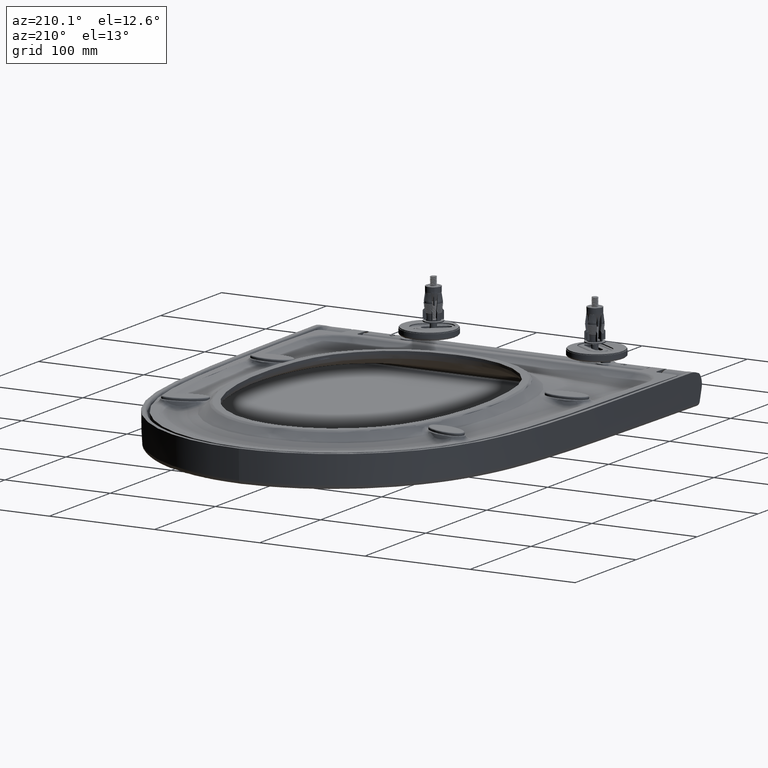
[diagram: clean part render]
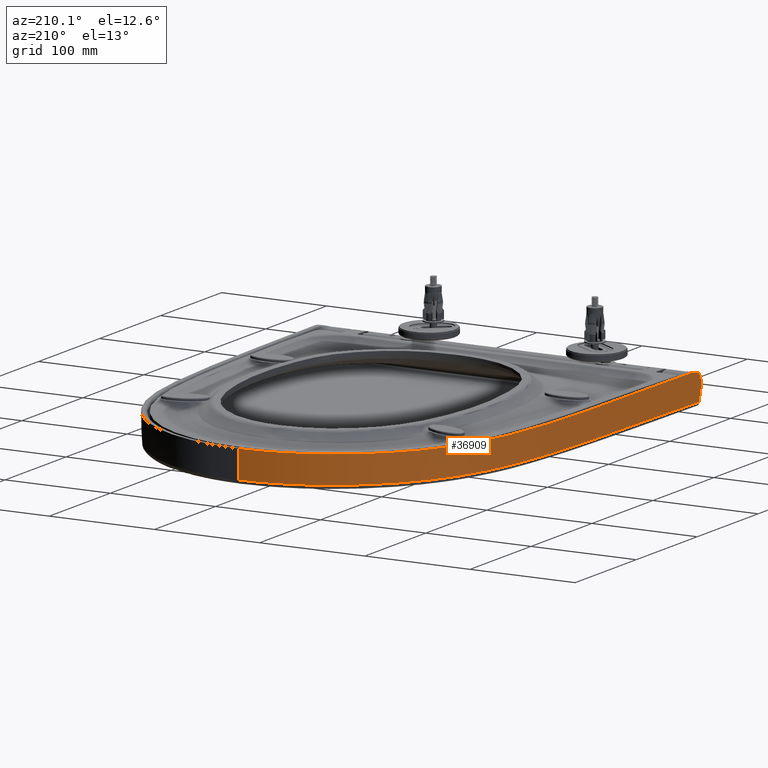
[diagram: same view with one face highlighted and labeled with its STEP entity id]
A machine part, auxiliary view. The second image highlights one B-rep face of the part: STEP entity #36909.
In plain terms, the highlighted face is a freeform B-spline surface patch.
Its self-contained STEP definition (entity closure, byte-faithful):
#33938=DIRECTION('',(1.745527117404E-2,-9.998476451481E-1,-1.439354094392E-10));
#33939=VECTOR('',#33938,2.661036454849E1);
#33940=CARTESIAN_POINT('',(4.627604190006E2,2.460631033034E1,
3.829599969836E-9));
#33941=LINE('',#33940,#33939);
#33942=CARTESIAN_POINT('',(1.355598717456E1,1.483447112919E1,1.787276437954E2));
#33943=CARTESIAN_POINT('',(1.385956772965E1,1.592884330337E1,1.787079702712E2));
#33944=CARTESIAN_POINT('',(1.446875507497E1,1.815293155915E1,1.786677047600E2));
#33945=CARTESIAN_POINT('',(1.535569918370E1,2.160687606978E1,1.786053820131E2));
#33946=CARTESIAN_POINT('',(1.599493402894E1,2.396451394474E1,1.785644403813E2));
#33947=CARTESIAN_POINT('',(1.632109369283E1,2.516144154054E1,1.785429384107E2));
#33949=CARTESIAN_POINT('',(1.632109369283E1,2.516144154054E1,1.785429384107E2));
#33950=CARTESIAN_POINT('',(3.864213313813E1,2.506585513878E1,1.784922737846E2));
#33951=CARTESIAN_POINT('',(8.328064523827E1,2.486774373113E1,1.781855839201E2));
#33952=CARTESIAN_POINT('',(1.502246251232E2,2.459570723331E1,1.773574155041E2));
#33953=CARTESIAN_POINT('',(2.060509088499E2,2.437498458567E1,1.759858462818E2));
#33954=CARTESIAN_POINT('',(2.507109372020E2,2.422181940488E1,1.734049631766E2));
#33955=CARTESIAN_POINT('',(2.841550716498E2,2.412484239113E1,1.702634994917E2));
#33956=CARTESIAN_POINT('',(3.174881770904E2,2.405954226929E1,1.649459725570E2));
#33957=CARTESIAN_POINT('',(3.501172814178E2,2.404989789133E1,1.556895786642E2));
#33958=CARTESIAN_POINT('',(3.810292007364E2,2.410670723827E1,1.412695677403E2));
#33959=CARTESIAN_POINT('',(4.177347201674E2,2.426129125877E1,1.143101611712E2));
#33960=CARTESIAN_POINT('',(4.524897503572E2,2.453182587116E1,6.805302128084E1));
#33961=CARTESIAN_POINT('',(4.627603024986E2,2.460630953780E1,2.270499312342E1));
#33962=CARTESIAN_POINT('',(4.627604190006E2,2.460631033034E1,
3.829599969836E-9));
#33964=CARTESIAN_POINT('',(3.056754644031E1,-1.999999876984E0,
1.789687411308E2));
#33965=CARTESIAN_POINT('',(4.751824236054E1,-1.999999876984E0,
1.788973435934E2));
#33966=CARTESIAN_POINT('',(7.982374964766E1,-2.000000057092E0,
1.786630189628E2));
#33967=CARTESIAN_POINT('',(1.231382903773E2,-1.999999984702E0,
1.781425289772E2));
#33968=CARTESIAN_POINT('',(1.623790255184E2,-2.000000004099E0,
1.775154749295E2));
#33969=CARTESIAN_POINT('',(1.975833120235E2,-1.999999998902E0,
1.765745074952E2));
#33970=CARTESIAN_POINT('',(2.287817076286E2,-2.000000000294E0,
1.752034739058E2));
#33971=CARTESIAN_POINT('',(2.563481842830E2,-1.999999999921E0,
1.733495062176E2));
#33972=CARTESIAN_POINT('',(2.805533375280E2,-2.000000000021E0,
1.709548315538E2));
#33973=CARTESIAN_POINT('',(3.017245035490E2,-1.999999999994E0,
1.679811250958E2));
#33974=CARTESIAN_POINT('',(3.200158636192E2,-2.000000000002E0,
1.643466256910E2));
#33975=CARTESIAN_POINT('',(3.360250831624E2,-2.E0,1.601052141601E2));
#33976=CARTESIAN_POINT('',(3.502005047276E2,-2.E0,1.553460563256E2));
#33977=CARTESIAN_POINT('',(3.628803505777E2,-2.E0,1.501268057971E2));
#33978=CARTESIAN_POINT('',(3.744625545584E2,-2.E0,1.444031203151E2));
#33979=CARTESIAN_POINT('',(3.852499920167E2,-2.E0,1.380681694013E2));
#33980=CARTESIAN_POINT('',(3.954623039032E2,-2.E0,1.310567742935E2));
#33981=CARTESIAN_POINT('',(4.051374434337E2,-2.E0,1.233588571963E2));
#33982=CARTESIAN_POINT('',(4.141890334608E2,-2.E0,1.150498269234E2));
#33983=CARTESIAN_POINT('',(4.225634722963E2,-2.E0,1.061908424640E2));
#33984=CARTESIAN_POINT('',(4.301857878542E2,-2.E0,9.688341505055E1));
#33985=CARTESIAN_POINT('',(4.370614190218E2,-2.E0,8.713908960612E1));
#33986=CARTESIAN_POINT('',(4.431885329650E2,-2.E0,7.697429140178E1));
#33987=CARTESIAN_POINT('',(4.485374313563E2,-2.E0,6.646963696604E1));
#33988=CARTESIAN_POINT('',(4.530740319463E2,-2.E0,5.572467646762E1));
#33989=CARTESIAN_POINT('',(4.567908618289E2,-2.E0,4.479078328583E1));
#33990=CARTESIAN_POINT('',(4.596687235733E2,-2.E0,3.374135779699E1));
#33991=CARTESIAN_POINT('',(4.617172191893E2,-2.E0,2.258099167195E1));
#33992=CARTESIAN_POINT('',(4.629483596686E2,-2.E0,1.133712993628E1));
#33993=CARTESIAN_POINT('',(4.632249101299E2,-2.E0,3.788044564754E0));
#33994=CARTESIAN_POINT('',(4.632249101299E2,-2.E0,-5.737467766091E-13));
#34183=CARTESIAN_POINT('',(1.699999999413E1,7.712958806193E-1,
1.789656714775E2));
#34184=CARTESIAN_POINT('',(1.842500364431E1,1.638103317639E-1,
1.789728012145E2));
#34185=CARTESIAN_POINT('',(2.135672628098E1,-8.594574196030E-1,
1.789827189913E2));
#34186=CARTESIAN_POINT('',(2.592029704715E1,-1.791608123058E0,
1.789837186049E2));
#34187=CARTESIAN_POINT('',(2.901846172610E1,-1.999999877206E0,
1.789752659859E2));
#34188=CARTESIAN_POINT('',(3.056754644031E1,-1.999999876984E0,
1.789687411308E2));
#34239=CARTESIAN_POINT('',(1.355598717456E1,1.483447112919E1,1.787276437954E2));
#34240=CARTESIAN_POINT('',(1.333348329559E1,1.401639467062E1,1.787423595901E2));
#34241=CARTESIAN_POINT('',(1.300979764379E1,1.226541155010E1,1.787737321361E2));
#34242=CARTESIAN_POINT('',(1.299777943977E1,9.224022270388E0,1.788267651513E2));
#34243=CARTESIAN_POINT('',(1.370303639502E1,6.027905930512E0,1.788812336471E2));
#34244=CARTESIAN_POINT('',(1.501980244790E1,3.224743791857E0,1.789274657387E2));
#34245=CARTESIAN_POINT('',(1.628965712724E1,1.537239713640E0,1.789540333115E2));
#34246=CARTESIAN_POINT('',(1.699999999413E1,7.712958806193E-1,
1.789656714775E2));
#34796=CARTESIAN_POINT('',(4.627604190006E2,2.460631033034E1,
3.829599969836E-9));
#35450=VERTEX_POINT('',#34796);
#35452=VERTEX_POINT('',#33949);
#35453=CARTESIAN_POINT('',(4.632249101299E2,-2.E0,-5.737467766088E-13));
#35454=VERTEX_POINT('',#35453);
#35455=VERTEX_POINT('',#33964);
#35456=VERTEX_POINT('',#34183);
#35457=VERTEX_POINT('',#34239);
#36839=CARTESIAN_POINT('',(4.628574952114E2,-2.697224613865E0,
-1.084600503595E1));
#36840=CARTESIAN_POINT('',(4.626917604413E2,6.822145419222E0,
-1.083444597866E1));
#36841=CARTESIAN_POINT('',(4.625260256711E2,1.634151545231E1,
-1.082288692138E1));
#36842=CARTESIAN_POINT('',(4.623602909009E2,2.586088548539E1,
-1.081132786410E1));
#36843=CARTESIAN_POINT('',(4.631107358136E2,-2.697224613865E0,
-7.235954952003E0));
#36844=CARTESIAN_POINT('',(4.629447149896E2,6.822145419222E0,
-7.228227630417E0));
#36845=CARTESIAN_POINT('',(4.627786941656E2,1.634151545231E1,
-7.220500308831E0));
#36846=CARTESIAN_POINT('',(4.626126733415E2,2.586088548539E1,
-7.212772987245E0));
#36847=CARTESIAN_POINT('',(4.636862955157E2,-2.697224613865E0,
9.245574256446E0));
#36848=CARTESIAN_POINT('',(4.635196351113E2,6.822145419222E0,9.235721900116E0));
#36849=CARTESIAN_POINT('',(4.633529747069E2,1.634151545231E1,9.225869543787E0));
#36850=CARTESIAN_POINT('',(4.631863143024E2,2.586088548539E1,9.216017187457E0));
#36851=CARTESIAN_POINT('',(4.592212425633E2,-2.697224613865E0,
4.520888463568E1));
#36852=CARTESIAN_POINT('',(4.590595438692E2,6.822145419222E0,4.516025429902E1));
#36853=CARTESIAN_POINT('',(4.588978451751E2,1.634151545231E1,4.511162396237E1));
#36854=CARTESIAN_POINT('',(4.587361464810E2,2.586088548539E1,4.506299362572E1));
#36855=CARTESIAN_POINT('',(4.339664990456E2,-2.697224613865E0,
9.970441493530E1));
#36856=CARTESIAN_POINT('',(4.338304759693E2,6.822145419222E0,9.960058015284E1));
#36857=CARTESIAN_POINT('',(4.336944528929E2,1.634151545231E1,9.949674537037E1));
#36858=CARTESIAN_POINT('',(4.335584298166E2,2.586088548539E1,9.939291058790E1));
#36859=CARTESIAN_POINT('',(3.834508727344E2,-2.697224613865E0,
1.443918016724E2));
#36860=CARTESIAN_POINT('',(3.833654143386E2,6.822145419222E0,1.442444142519E2));
#36861=CARTESIAN_POINT('',(3.832799559428E2,1.634151545231E1,1.440970268314E2));
#36862=CARTESIAN_POINT('',(3.831944975470E2,2.586088548539E1,1.439496394109E2));
#36863=CARTESIAN_POINT('',(3.240995610713E2,-2.697224613865E0,
1.649929847987E2));
#36864=CARTESIAN_POINT('',(3.240634349736E2,6.822145419222E0,1.648297543844E2));
#36865=CARTESIAN_POINT('',(3.240273088759E2,1.634151545231E1,1.646665239700E2));
#36866=CARTESIAN_POINT('',(3.239911827782E2,2.586088548539E1,1.645032935557E2));
#36867=CARTESIAN_POINT('',(2.712681499601E2,-2.697224613865E0,
1.724689429931E2));
#36868=CARTESIAN_POINT('',(2.712532624874E2,6.822145419222E0,1.723033579870E2));
#36869=CARTESIAN_POINT('',(2.712383750148E2,1.634151545231E1,1.721377729809E2));
#36870=CARTESIAN_POINT('',(2.712234875421E2,2.586088548539E1,1.719721879748E2));
#36871=CARTESIAN_POINT('',(2.092961782515E2,-2.697224613865E0,
1.765748810362E2));
#36872=CARTESIAN_POINT('',(2.092902716663E2,6.822145419222E0,1.764087716253E2));
#36873=CARTESIAN_POINT('',(2.092843650810E2,1.634151545231E1,1.762426622144E2));
#36874=CARTESIAN_POINT('',(2.092784584958E2,2.586088548539E1,1.760765528035E2));
#36875=CARTESIAN_POINT('',(1.373318684158E2,-2.697224613865E0,
1.780418071603E2));
#36876=CARTESIAN_POINT('',(1.373298491579E2,6.822145419222E0,1.778756621425E2));
#36877=CARTESIAN_POINT('',(1.373278299E2,1.634151545231E1,1.777095171248E2));
#36878=CARTESIAN_POINT('',(1.373258106421E2,2.586088548539E1,1.775433721071E2));
#36879=CARTESIAN_POINT('',(6.826967401978E1,-2.697224613865E0,
1.788052657887E2));
#36880=CARTESIAN_POINT('',(6.826818484794E1,6.822145419222E0,1.786391097502E2));
#36881=CARTESIAN_POINT('',(6.826669567610E1,1.634151545231E1,1.784729537116E2));
#36882=CARTESIAN_POINT('',(6.826520650427E1,2.586088548539E1,1.783067976730E2));
#36883=CARTESIAN_POINT('',(2.581437114037E1,-2.697224613865E0,
1.790163043675E2));
#36884=CARTESIAN_POINT('',(2.581374807951E1,6.822145419222E0,1.788501438350E2));
#36885=CARTESIAN_POINT('',(2.581312501865E1,1.634151545231E1,1.786839833025E2));
#36886=CARTESIAN_POINT('',(2.581250195779E1,2.586088548539E1,1.785178227700E2));
#36887=CARTESIAN_POINT('',(9.395986816679E0,-2.697224613865E0,
1.790409611639E2));
#36888=CARTESIAN_POINT('',(9.395758337986E0,6.822145419222E0,1.788748000805E2));
#36889=CARTESIAN_POINT('',(9.395529859294E0,1.634151545231E1,1.787086389971E2));
#36890=CARTESIAN_POINT('',(9.395301380602E0,2.586088548539E1,1.785424779138E2));
#36891=CARTESIAN_POINT('',(7.583718564833E0,-2.697224613865E0,
1.790429636641E2));
#36892=CARTESIAN_POINT('',(7.583534329560E0,6.822145419222E0,1.788768025356E2));
#36893=CARTESIAN_POINT('',(7.583350094287E0,1.634151545231E1,1.787106414072E2));
#36894=CARTESIAN_POINT('',(7.583165859015E0,2.586088548539E1,1.785444802787E2));
#36895=B_SPLINE_SURFACE_WITH_KNOTS('',3,3,((#36839,#36840,#36841,#36842),
(#36843,#36844,#36845,#36846),(#36847,#36848,#36849,#36850),(#36851,#36852,
#36853,#36854),(#36855,#36856,#36857,#36858),(#36859,#36860,#36861,#36862),(
#36863,#36864,#36865,#36866),(#36867,#36868,#36869,#36870),(#36871,#36872,
#36873,#36874),(#36875,#36876,#36877,#36878),(#36879,#36880,#36881,#36882),(
#36883,#36884,#36885,#36886),(#36887,#36888,#36889,#36890),(#36891,#36892,
#36893,#36894)),.UNSPECIFIED.,.F.,.F.,.F.,(4,1,1,1,1,1,1,1,1,1,1,4),(4,4),(
-2.000024853127E-2,0.E0,7.111052110304E-2,1.787956779058E-1,3.235432027912E-1,
4.320650350179E-1,5.213353641670E-1,6.181097147652E-1,7.752932817779E-1,
9.192398154774E-1,1.E0,1.010020510650E0),(1.954873987681E-2,9.804512401129E-1),
.UNSPECIFIED.);
#36896=ORIENTED_EDGE('',*,*,#36825,.T.);
#36898=ORIENTED_EDGE('',*,*,#36897,.F.);
#36900=ORIENTED_EDGE('',*,*,#36899,.F.);
#36902=ORIENTED_EDGE('',*,*,#36901,.F.);
#36904=ORIENTED_EDGE('',*,*,#36903,.T.);
#36906=ORIENTED_EDGE('',*,*,#36905,.T.);
#36907=EDGE_LOOP('',(#36896,#36898,#36900,#36902,#36904,#36906));
#36908=FACE_OUTER_BOUND('',#36907,.F.);
#33948=B_SPLINE_CURVE_WITH_KNOTS('',3,(#33942,#33943,#33944,#33945,#33946,
#33947),.UNSPECIFIED.,.F.,.F.,(4,1,1,4),(0.E0,3.333333333333E-1,
6.666666666667E-1,1.E0),.UNSPECIFIED.);
#33963=B_SPLINE_CURVE_WITH_KNOTS('',3,(#33949,#33950,#33951,#33952,#33953,
#33954,#33955,#33956,#33957,#33958,#33959,#33960,#33961,#33962),.UNSPECIFIED.,
.F.,.F.,(4,1,1,1,1,1,1,1,1,1,1,4),(0.E0,1.25E-1,2.5E-1,3.75E-1,4.375E-1,5.E-1,
5.625E-1,6.25E-1,6.875E-1,7.5E-1,8.75E-1,1.E0),.UNSPECIFIED.);
#33995=B_SPLINE_CURVE_WITH_KNOTS('',3,(#33964,#33965,#33966,#33967,#33968,
#33969,#33970,#33971,#33972,#33973,#33974,#33975,#33976,#33977,#33978,#33979,
#33980,#33981,#33982,#33983,#33984,#33985,#33986,#33987,#33988,#33989,#33990,
#33991,#33992,#33993,#33994),.UNSPECIFIED.,.F.,.F.,(4,1,1,1,1,1,1,1,1,1,1,1,1,1,
1,1,1,1,1,1,1,1,1,1,1,1,1,1,4),(0.E0,3.571428571429E-2,7.142857142857E-2,
1.071428571429E-1,1.428571428571E-1,1.785714285714E-1,2.142857142857E-1,2.5E-1,
2.857142857143E-1,3.214285714286E-1,3.571428571429E-1,3.928571428571E-1,
4.285714285714E-1,4.642857142857E-1,5.E-1,5.357142857143E-1,5.714285714286E-1,
6.071428571429E-1,6.428571428571E-1,6.785714285714E-1,7.142857142857E-1,7.5E-1,
7.857142857143E-1,8.214285714286E-1,8.571428571429E-1,8.928571428571E-1,
9.285714285714E-1,9.642857142857E-1,1.E0),.UNSPECIFIED.);
#34189=B_SPLINE_CURVE_WITH_KNOTS('',3,(#34183,#34184,#34185,#34186,#34187,
#34188),.UNSPECIFIED.,.F.,.F.,(4,1,1,4),(0.E0,3.333333333333E-1,
6.666666666667E-1,1.E0),.UNSPECIFIED.);
#34247=B_SPLINE_CURVE_WITH_KNOTS('',3,(#34239,#34240,#34241,#34242,#34243,
#34244,#34245,#34246),.UNSPECIFIED.,.F.,.F.,(4,1,1,1,1,4),(0.E0,2.E-1,4.E-1,
6.E-1,8.E-1,1.E0),.UNSPECIFIED.);
#36825=EDGE_CURVE('',#35450,#35454,#33941,.T.);
#36897=EDGE_CURVE('',#35455,#35454,#33995,.T.);
#36899=EDGE_CURVE('',#35456,#35455,#34189,.T.);
#36901=EDGE_CURVE('',#35457,#35456,#34247,.T.);
#36903=EDGE_CURVE('',#35457,#35452,#33948,.T.);
#36905=EDGE_CURVE('',#35452,#35450,#33963,.T.);
#36909=ADVANCED_FACE('',(#36908),#36895,.F.);